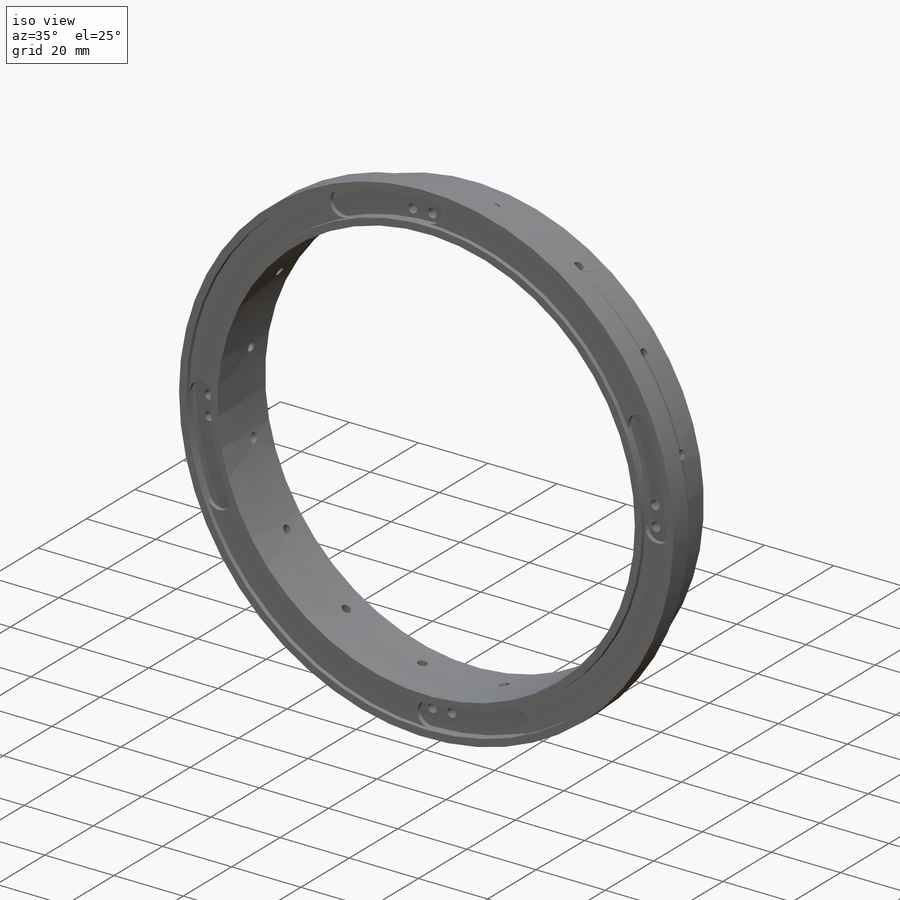
[diagram: iso view]
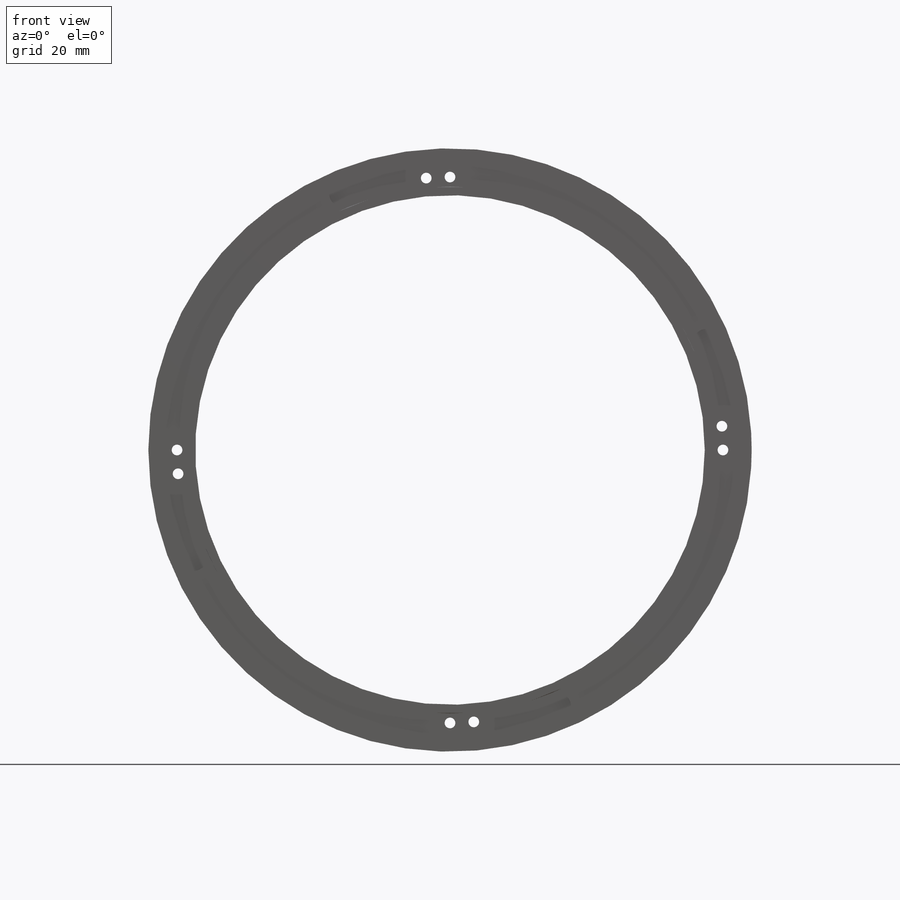
[diagram: front view]
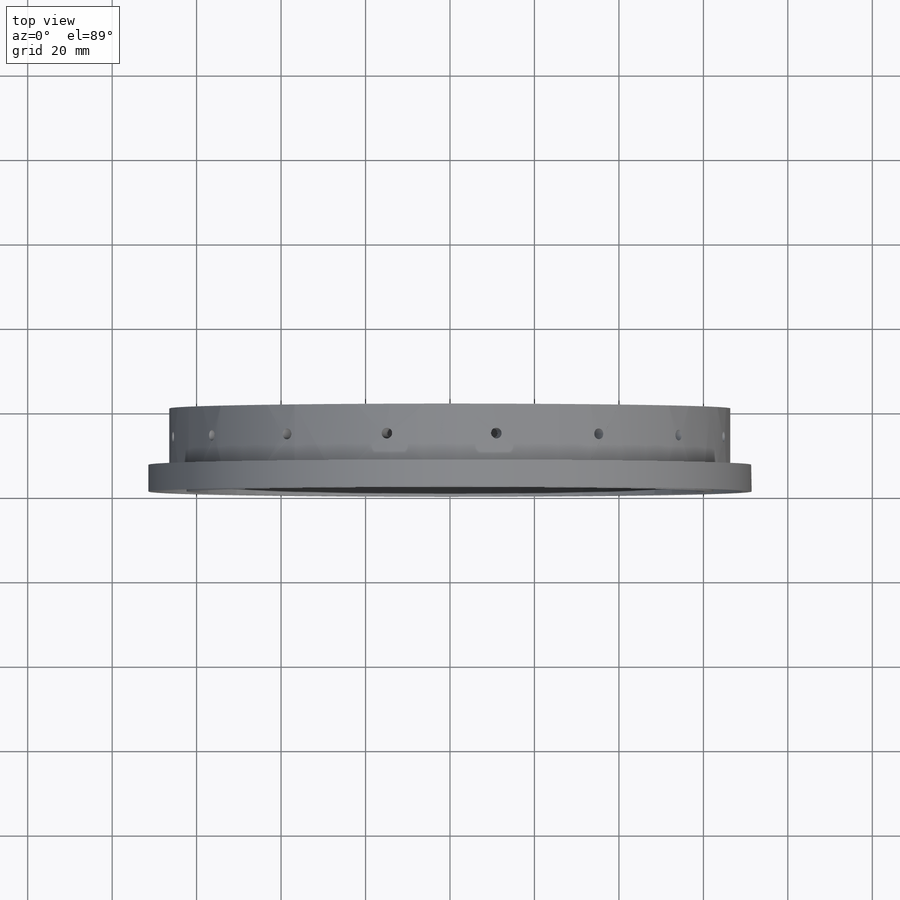
[diagram: top view]
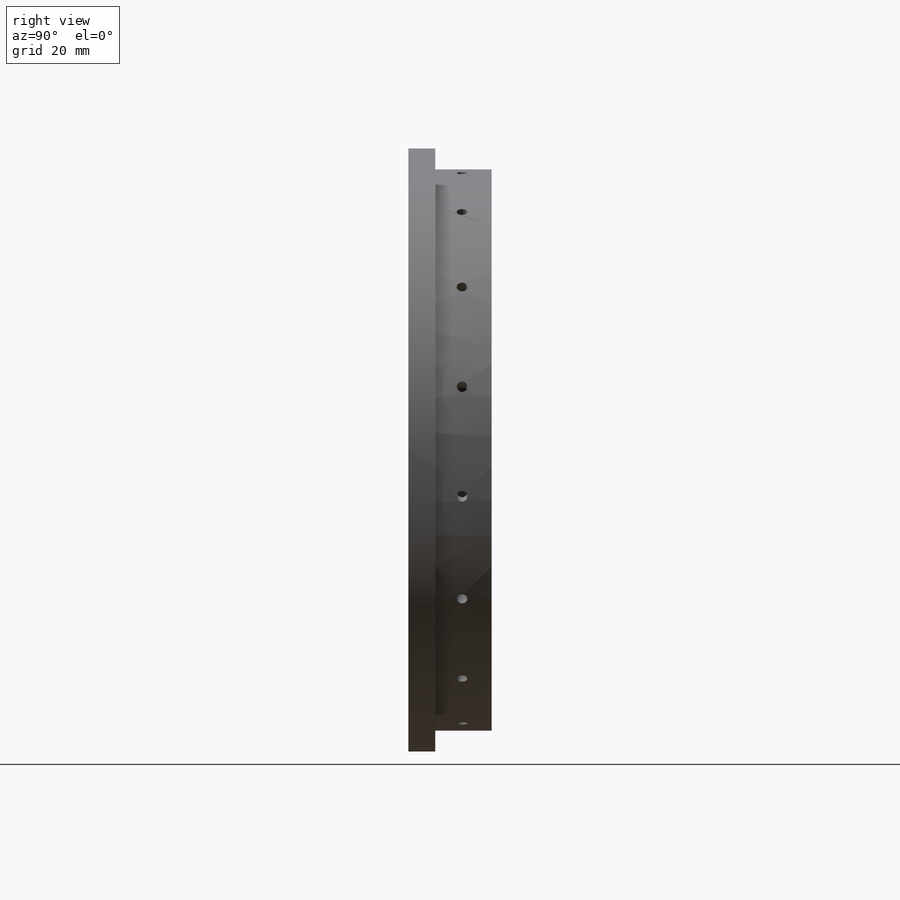
[diagram: right view]
SOLIDWORKS PART (.sldprt)
format: sldprt  version: not decoded by parser v0  size: 431,616 bytes
history: native  units: mm
features: sketch x12, cut_extrude x4, pattern_circular x3, hole x2, plane x2, material x1, extrude x1 (+12 scaffold rows collapsed)
feature tree (37):
  scaffold x12  (default folders/planes/origin — collapsed)
  material  "Material <not specified>"
  sketch  "Sketch1"  dims[D1=142.875mm]
  extrude  "Extrude1"  Depth=19.685mm
  sketch  "Sketch2"  dims[D1=120.65mm]
  cut_extrude  "Extrude2"  [1 undecoded]
  sketch  "Sketch3"  dims[D1=132.969mm]
  cut_extrude  "Extrude3"  Depth=13.335mm
  sketch  "Sketch4"  dims[D1=124.714mm D2=138.684mm]
  cut_extrude  "Extrude4"  Depth=1.27mm
  sketch  "Sketch5"
  sketch  "Sketch7"  dims[D1=~13.392498deg]
  cut_extrude  "Extrude6"  Depth=1.27mm
  pattern_circular  "CirPattern1"  Count=4 Angle=90deg
  sketch  "Sketch8"  dims[D1=~5.742692deg]
  hole  "#39 (0.0995) Diameter Hole1"  Diameter=2.5273mm Depth=17.145mm
  sketch  "3DSketch1"
  sketch  "Sketch9"  dims[hole-wizard template sketch: 59 standard entries collapsed; hole parameters kept: c18.Thru Hole Dia.=2.5273mm c18.Thru Hole Depth=17.145mm]
  pattern_circular  "CirPattern2"  Count=4 Angle=360deg
  plane  "Plane1"  Offset=6.35mm
  sketch  "Sketch15"  dims[D1=11.25deg]
  plane  "Plane3"
  hole  "#39 (0.0995) Diameter Hole5"  Diameter=2.5273mm Depth=12.7mm
  sketch  "Sketch17"
  sketch  "Sketch16"  dims[hole-wizard template sketch: 47 standard entries collapsed; hole parameters kept: c15.Hole Depth=12.7mm c15.D3=~14.816244mm c15.Drill Angle=118.0deg]
  pattern_circular  "CirPattern4"  Count=16 Angle=360deg
decode coverage: 18 of 22 modeling features carry decoded parameters
note: ~ marks probable driven/reference dimensions
note: 1 parameter value undecoded
note: suppression state not decoded; provenance and decode notes live in map.json
